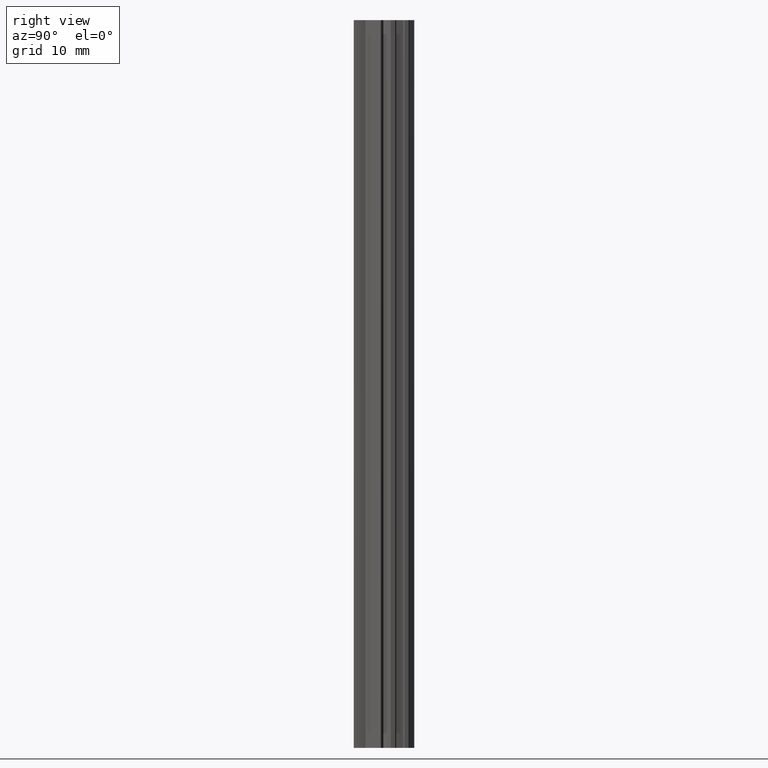
[diagram: clean part render]
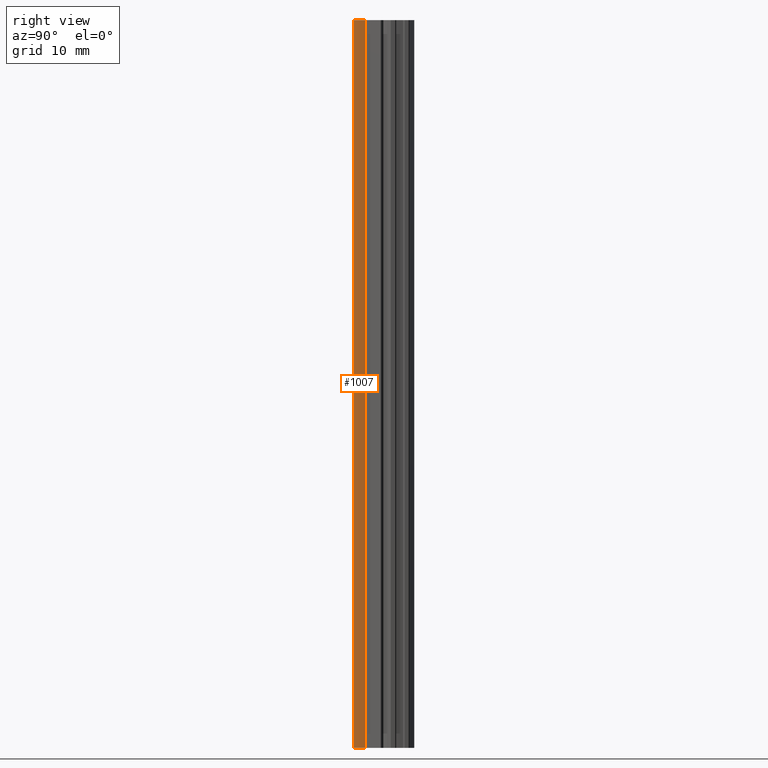
[diagram: same view with one face highlighted and labeled with its STEP entity id]
A machine part, right view. The second image highlights one B-rep face of the part: STEP entity #1007.
In plain terms, the highlighted cylindrical surface (edge-blend (fillet) strip) has radius 4.8446 mm, axis along (0, 0, 1).
Its self-contained STEP definition (entity closure, byte-faithful):
#947=CARTESIAN_POINT('',(0.0,0.0,0.0));
#948=VERTEX_POINT('',#947);
#956=CARTESIAN_POINT('',(0.0,0.0,100.0));
#957=VERTEX_POINT('',#956);
#958=CARTESIAN_POINT('',(0.0,0.0,0.0));
#959=DIRECTION('',(0.0,0.0,1.0));
#960=VECTOR('',#959,100.0);
#961=LINE('',#958,#960);
#962=EDGE_CURVE('',#948,#957,#961,.T.);
#975=CARTESIAN_POINT('',(-4.654250850722747,1.344527319361987,0.0));
#976=DIRECTION('',(0.0,0.0,1.0));
#977=DIRECTION('',(0.960716056183925,-0.277533168090600,0.0));
#978=AXIS2_PLACEMENT_3D('',#975,#976,#977);
#979=CYLINDRICAL_SURFACE('',#978,4.844564448323841);
#980=CARTESIAN_POINT('',(0.185952389685099,1.550044436689859,0.0));
#981=VERTEX_POINT('',#980);
#982=CARTESIAN_POINT('',(-4.654250850722747,1.344527319361987,0.0));
#983=DIRECTION('',(0.0,0.0,1.0));
#984=DIRECTION('',(1.0,0.0,0.0));
#985=AXIS2_PLACEMENT_3D('',#982,#983,#984);
#986=CIRCLE('',#985,4.844564448323841);
#987=EDGE_CURVE('',#948,#981,#986,.T.);
#988=ORIENTED_EDGE('',*,*,#987,.T.);
#989=CARTESIAN_POINT('',(0.185952389685099,1.550044436689859,100.0));
#990=VERTEX_POINT('',#989);
#991=CARTESIAN_POINT('',(0.185952389685099,1.550044436689859,0.0));
#992=DIRECTION('',(0.0,0.0,1.0));
#993=VECTOR('',#992,100.0);
#994=LINE('',#991,#993);
#995=EDGE_CURVE('',#981,#990,#994,.T.);
#996=ORIENTED_EDGE('',*,*,#995,.T.);
#997=CARTESIAN_POINT('',(-4.654250850722747,1.344527319361987,100.0));
#998=DIRECTION('',(0.0,0.0,1.0));
#999=DIRECTION('',(1.0,0.0,0.0));
#1000=AXIS2_PLACEMENT_3D('',#997,#998,#999);
#1001=CIRCLE('',#1000,4.844564448323841);
#1002=EDGE_CURVE('',#957,#990,#1001,.T.);
#1003=ORIENTED_EDGE('',*,*,#1002,.F.);
#1004=ORIENTED_EDGE('',*,*,#962,.F.);
#1005=EDGE_LOOP('',(#988,#996,#1003,#1004));
#1006=FACE_OUTER_BOUND('',#1005,.T.);
#1007=ADVANCED_FACE('',(#1006),#979,.T.);